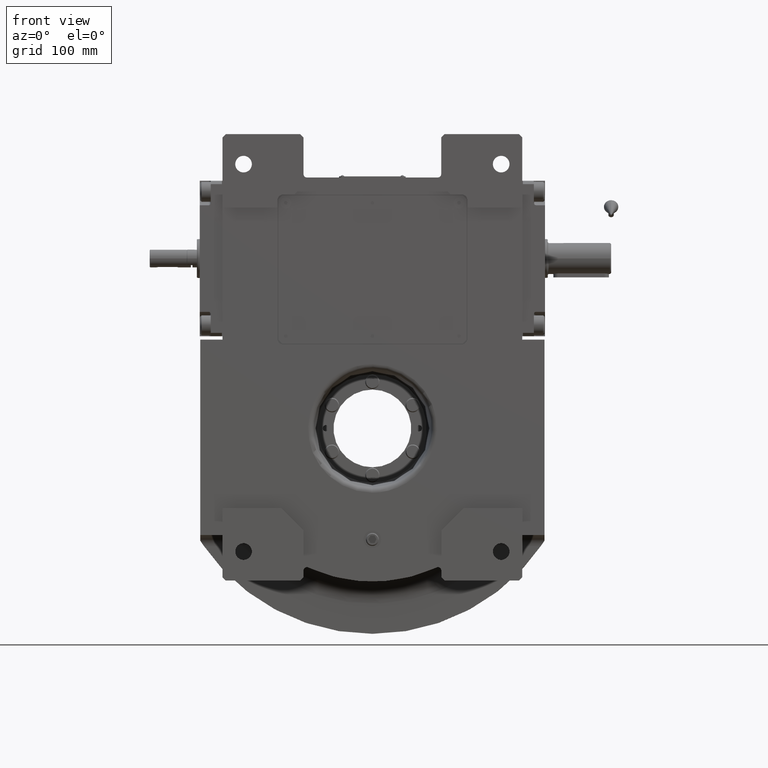
[diagram: clean part render]
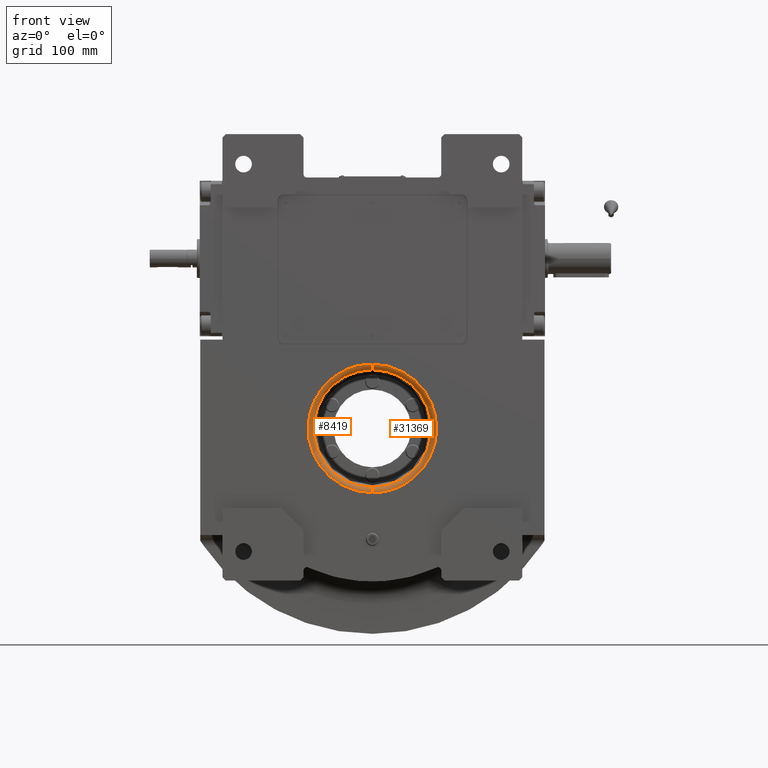
[diagram: same view with one multi-face feature highlighted, each face labeled with its STEP entity id]
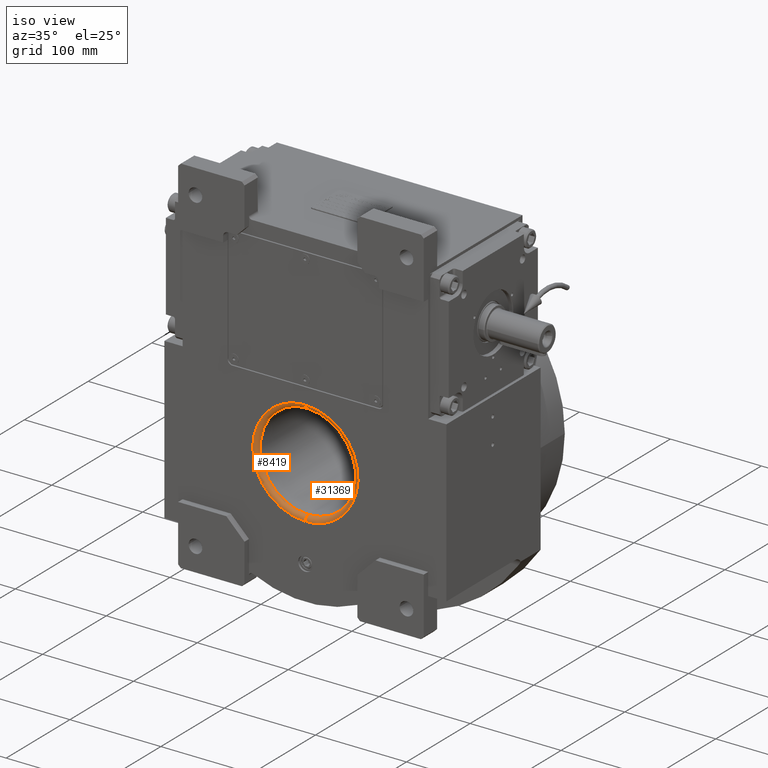
[diagram: same view with one multi-face feature highlighted, each face labeled with its STEP entity id]
A machine part, front view. The highlighted faces form ONE feature: a constant-radius fillet chain: 2 tangent blend faces with common blend radius 5 mm. The faces share edges in the B-rep.
A second angle (iso view) of the same feature is appended — it is thin or edge-on in the first view.
Their STEP definitions:
[1] entity #8419 (Torus):
#2035 = CARTESIAN_POINT ( 'NONE',  ( -1.115322681495329805E-12, -73.00000000000000000, 57.88848986029439914 ) ) ;
#2408 = DIRECTION ( 'NONE',  ( 2.334134032802207626E-11, -1.000000000000000000, -1.099120794378903965E-12 ) ) ;
#3003 = ORIENTED_EDGE ( 'NONE', *, *, #10541, .T. ) ;
#5025 = CIRCLE ( 'NONE', #16300, 52.88976140256119152 ) ;
#6643 = DIRECTION ( 'NONE',  ( 1.000000000000000000, 2.334134032802589874E-11, -3.443100538103175062E-12 ) ) ;
#6674 = CARTESIAN_POINT ( 'NONE',  ( 5.180066373969149615E-08, -68.11275406274060629, 4.736386318413870025E-15 ) ) ;
#7260 = CARTESIAN_POINT ( 'NONE',  ( -1.115322681495329805E-12, -73.00000000000000000, 57.88848986029439914 ) ) ;
#8088 = TOROIDAL_SURFACE ( 'NONE', #58615, 57.88848986029619681, 5.000000000000000000 ) ;
#8419 = ADVANCED_FACE ( 'NONE', ( #43384 ), #8088, .T. ) ;
#10541 = EDGE_CURVE ( 'NONE', #32071, #32240, #5025, .T. ) ;
#10573 = EDGE_LOOP ( 'NONE', ( #43090, #3003, #18788, #41357 ) ) ;
#13942 = AXIS2_PLACEMENT_3D ( 'NONE', #32406, #37333, #68977 ) ;
#14314 = EDGE_CURVE ( 'NONE', #47347, #32240, #26993, .T. ) ;
#16300 = AXIS2_PLACEMENT_3D ( 'NONE', #6674, #29472, #60122 ) ;
#16710 = CARTESIAN_POINT ( 'NONE',  ( 0.000000000000000000, -68.00000000000000000, 2.626597011442929886E-14 ) ) ;
#18788 = ORIENTED_EDGE ( 'NONE', *, *, #14314, .F. ) ;
#26465 = CARTESIAN_POINT ( 'NONE',  ( -3.366447261396295104E-11, -68.11275327462200835, 52.88976135205919604 ) ) ;
#26993 = CIRCLE ( 'NONE', #37062, 5.000000000000004441 ) ;
#29472 = DIRECTION ( 'NONE',  ( 2.310691404686464099E-08, 0.9999999999999997780, 1.490116125507999888E-08 ) ) ;
#29767 = CARTESIAN_POINT ( 'NONE',  ( -115.7767661625582463, -73.00000000000000000, 57.88834748044401834 ) ) ;
#32071 = VERTEX_POINT ( 'NONE', #68304 ) ;
#32240 = VERTEX_POINT ( 'NONE', #26465 ) ;
#32406 = CARTESIAN_POINT ( 'NONE',  ( 1.200603528221986005E-10, -68.00000000000000000, -57.88848986029619681 ) ) ;
#35222 = CIRCLE ( 'NONE', #13942, 5.000000000000004441 ) ;
#37062 = AXIS2_PLACEMENT_3D ( 'NONE', #54825, #6643, #2408 ) ;
#37333 = DIRECTION ( 'NONE',  ( -1.000000000000000000, 2.334229079672190055E-11, 3.440570546148015035E-12 ) ) ;
#41357 = ORIENTED_EDGE ( 'NONE', *, *, #51964, .F. ) ;
#42648 = VERTEX_POINT ( 'NONE', #52143 ) ;
#43027 = DIRECTION ( 'NONE',  ( 0.02407689559208889621, -2.392540785118227540E-35, -0.9997101095310817476 ) ) ;
#43090 = ORIENTED_EDGE ( 'NONE', *, *, #65075, .T. ) ;
#43384 = FACE_OUTER_BOUND ( 'NONE', #10573, .T. ) ;
#44539 = CARTESIAN_POINT ( 'NONE',  ( 1.116299612869330063E-12, -73.00000000000000000, -57.88848986029439914 ) ) ;
#47347 = VERTEX_POINT ( 'NONE', #7260 ) ;
#49090 =( BOUNDED_CURVE ( )  B_SPLINE_CURVE ( 3, ( #44539, #66005, #29767, #2035 ),
 .UNSPECIFIED., .F., .T. ) 
 B_SPLINE_CURVE_WITH_KNOTS ( ( 4, 4 ),
 ( 1.417576403733056045, 4.559165537837738036 ),
 .UNSPECIFIED. ) 
 CURVE ( )  GEOMETRIC_REPRESENTATION_ITEM ( )  RATIONAL_B_SPLINE_CURVE ( ( 1.000000000000000000, 0.3333345064950371528, 0.3333345064950371528, 1.000000000000000000 ) ) 
 REPRESENTATION_ITEM ( '' )  );
#51964 = EDGE_CURVE ( 'NONE', #42648, #47347, #49090, .T. ) ;
#52143 = CARTESIAN_POINT ( 'NONE',  ( 1.116299612869330063E-12, -73.00000000000000000, -57.88848986029439914 ) ) ;
#54825 = CARTESIAN_POINT ( 'NONE',  ( -1.200526696845962053E-10, -68.00000000000000000, 57.88848986029630339 ) ) ;
#58615 = AXIS2_PLACEMENT_3D ( 'NONE', #16710, #60269, #43027 ) ;
#60122 = DIRECTION ( 'NONE',  ( 0.9882587347805640299, -2.055886669902873894E-08, -0.1527896368538074756 ) ) ;
#60269 = DIRECTION ( 'NONE',  ( 4.421425797491959834E-18, -1.000000000000000000, 1.064850763030846077E-19 ) ) ;
#65075 = EDGE_CURVE ( 'NONE', #42648, #32071, #35222, .T. ) ;
#66005 = CARTESIAN_POINT ( 'NONE',  ( -115.7767661625559867, -73.00000000000000000, -57.88822476622628699 ) ) ;
#68304 = CARTESIAN_POINT ( 'NONE',  ( 3.366158563859759886E-11, -68.11275327462200835, -52.88976135205919604 ) ) ;
#68977 = DIRECTION ( 'NONE',  ( -2.334229079671812977E-11, -1.000000000000000000, 1.093569679255778183E-12 ) ) ;
[2] entity #31369 (Torus):
#1295 = ORIENTED_EDGE ( 'NONE', *, *, #65075, .F. ) ;
#1368 = CIRCLE ( 'NONE', #40620, 52.88976140256119152 ) ;
#1384 = CARTESIAN_POINT ( 'NONE',  ( -1.115322681495329805E-12, -73.00000000000000000, 57.88848986029439914 ) ) ;
#2408 = DIRECTION ( 'NONE',  ( 2.334134032802207626E-11, -1.000000000000000000, -1.099120794378903965E-12 ) ) ;
#6643 = DIRECTION ( 'NONE',  ( 1.000000000000000000, 2.334134032802589874E-11, -3.443100538103175062E-12 ) ) ;
#7260 = CARTESIAN_POINT ( 'NONE',  ( -1.115322681495329805E-12, -73.00000000000000000, 57.88848986029439914 ) ) ;
#7527 = ORIENTED_EDGE ( 'NONE', *, *, #25578, .T. ) ;
#11202 = CARTESIAN_POINT ( 'NONE',  ( 0.000000000000000000, -68.00000000000000000, 2.626597011442929886E-14 ) ) ;
#13287 = ORIENTED_EDGE ( 'NONE', *, *, #14314, .T. ) ;
#13942 = AXIS2_PLACEMENT_3D ( 'NONE', #32406, #37333, #68977 ) ;
#14314 = EDGE_CURVE ( 'NONE', #47347, #32240, #26993, .T. ) ;
#17738 = CARTESIAN_POINT ( 'NONE',  ( -5.180071170158429987E-08, -68.11275406274060629, 3.434346457190809174E-14 ) ) ;
#22303 = DIRECTION ( 'NONE',  ( 0.9882587857891660388, 2.055887273401757417E-08, -0.1527893069246760438 ) ) ;
#25578 = EDGE_CURVE ( 'NONE', #32240, #32071, #1368, .T. ) ;
#26465 = CARTESIAN_POINT ( 'NONE',  ( -3.366447261396295104E-11, -68.11275327462200835, 52.88976135205919604 ) ) ;
#26993 = CIRCLE ( 'NONE', #37062, 5.000000000000004441 ) ;
#27672 = DIRECTION ( 'NONE',  ( 4.421425797491955212E-18, -1.000000000000000000, 1.064850763030841984E-19 ) ) ;
#31369 = ADVANCED_FACE ( 'NONE', ( #48787 ), #47781, .T. ) ;
#32071 = VERTEX_POINT ( 'NONE', #68304 ) ;
#32233 = DIRECTION ( 'NONE',  ( -0.02407689559208884764, -5.981351962795569250E-35, 0.9997101095310817476 ) ) ;
#32240 = VERTEX_POINT ( 'NONE', #26465 ) ;
#32406 = CARTESIAN_POINT ( 'NONE',  ( 1.200603528221986005E-10, -68.00000000000000000, -57.88848986029619681 ) ) ;
#32995 = CARTESIAN_POINT ( 'NONE',  ( 1.116299612869330063E-12, -73.00000000000000000, -57.88848986029439914 ) ) ;
#35222 = CIRCLE ( 'NONE', #13942, 5.000000000000004441 ) ;
#37062 = AXIS2_PLACEMENT_3D ( 'NONE', #54825, #6643, #2408 ) ;
#37333 = DIRECTION ( 'NONE',  ( -1.000000000000000000, 2.334229079672190055E-11, 3.440570546148015035E-12 ) ) ;
#38268 = CARTESIAN_POINT ( 'NONE',  ( 115.7767661625584452, -73.00000000000000000, -57.88834748044417466 ) ) ;
#39137 = DIRECTION ( 'NONE',  ( -2.310691404686089221E-08, 0.9999999999999997780, -1.490116125507999888E-08 ) ) ;
#40620 = AXIS2_PLACEMENT_3D ( 'NONE', #17738, #39137, #22303 ) ;
#42648 = VERTEX_POINT ( 'NONE', #52143 ) ;
#43550 = CARTESIAN_POINT ( 'NONE',  ( 115.7767661625561999, -73.00000000000000000, 57.88822476622656410 ) ) ;
#45178 = ORIENTED_EDGE ( 'NONE', *, *, #58874, .F. ) ;
#46392 =( BOUNDED_CURVE ( )  B_SPLINE_CURVE ( 3, ( #1384, #43550, #38268, #32995 ),
 .UNSPECIFIED., .F., .F. ) 
 B_SPLINE_CURVE_WITH_KNOTS ( ( 4, 4 ),
 ( 4.559169057132199221, 7.700758191236885430 ),
 .UNSPECIFIED. ) 
 CURVE ( )  GEOMETRIC_REPRESENTATION_ITEM ( )  RATIONAL_B_SPLINE_CURVE ( ( 1.000000000000000000, 0.3333345064950357095, 0.3333345064950357095, 1.000000000000000000 ) ) 
 REPRESENTATION_ITEM ( '' )  );
#47347 = VERTEX_POINT ( 'NONE', #7260 ) ;
#47781 = TOROIDAL_SURFACE ( 'NONE', #62405, 57.88848986029619681, 5.000000000000000000 ) ;
#48787 = FACE_OUTER_BOUND ( 'NONE', #55162, .T. ) ;
#52143 = CARTESIAN_POINT ( 'NONE',  ( 1.116299612869330063E-12, -73.00000000000000000, -57.88848986029439914 ) ) ;
#54825 = CARTESIAN_POINT ( 'NONE',  ( -1.200526696845962053E-10, -68.00000000000000000, 57.88848986029630339 ) ) ;
#55162 = EDGE_LOOP ( 'NONE', ( #13287, #7527, #1295, #45178 ) ) ;
#58874 = EDGE_CURVE ( 'NONE', #47347, #42648, #46392, .T. ) ;
#62405 = AXIS2_PLACEMENT_3D ( 'NONE', #11202, #27672, #32233 ) ;
#65075 = EDGE_CURVE ( 'NONE', #42648, #32071, #35222, .T. ) ;
#68304 = CARTESIAN_POINT ( 'NONE',  ( 3.366158563859759886E-11, -68.11275327462200835, -52.88976135205919604 ) ) ;
#68977 = DIRECTION ( 'NONE',  ( -2.334229079671812977E-11, -1.000000000000000000, 1.093569679255778183E-12 ) ) ;